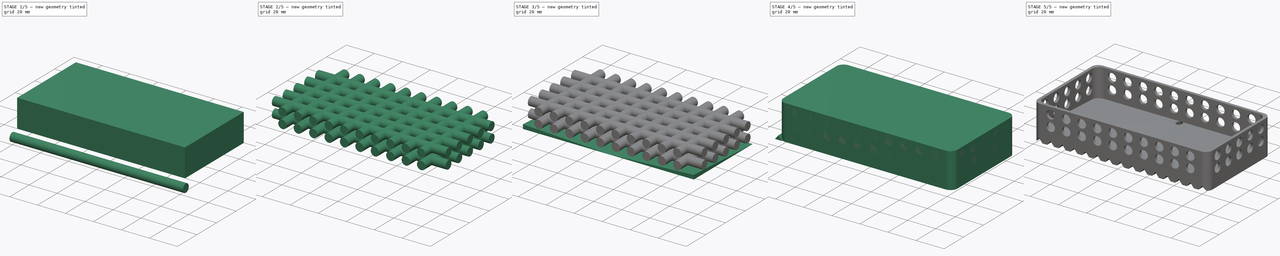
[diagram: build sequence overview — one tinted view per stage of 5, left to right]
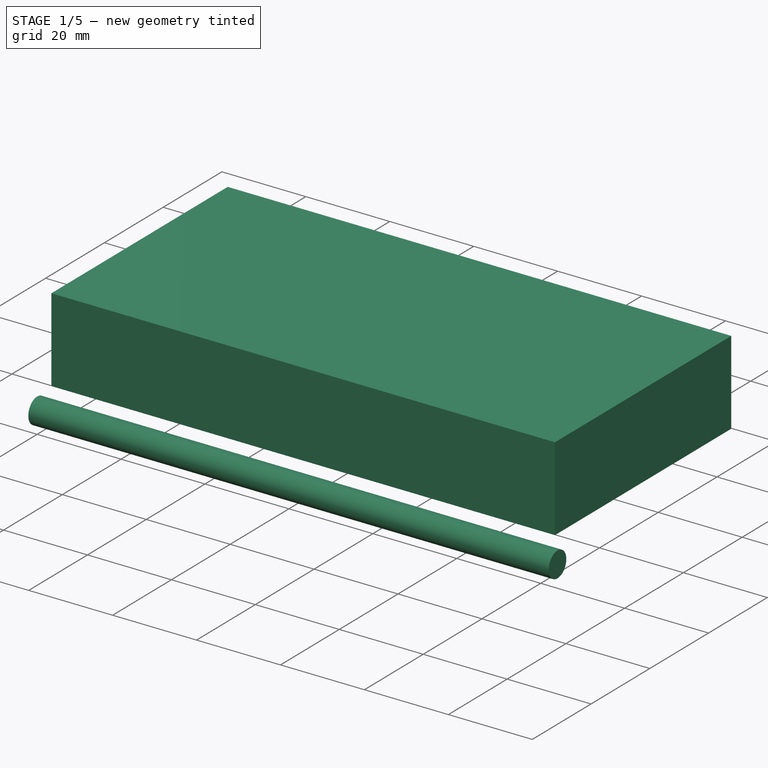
[diagram: stage 1 of 5 — iso view after this stage's code; geometry added in this stage tinted green]
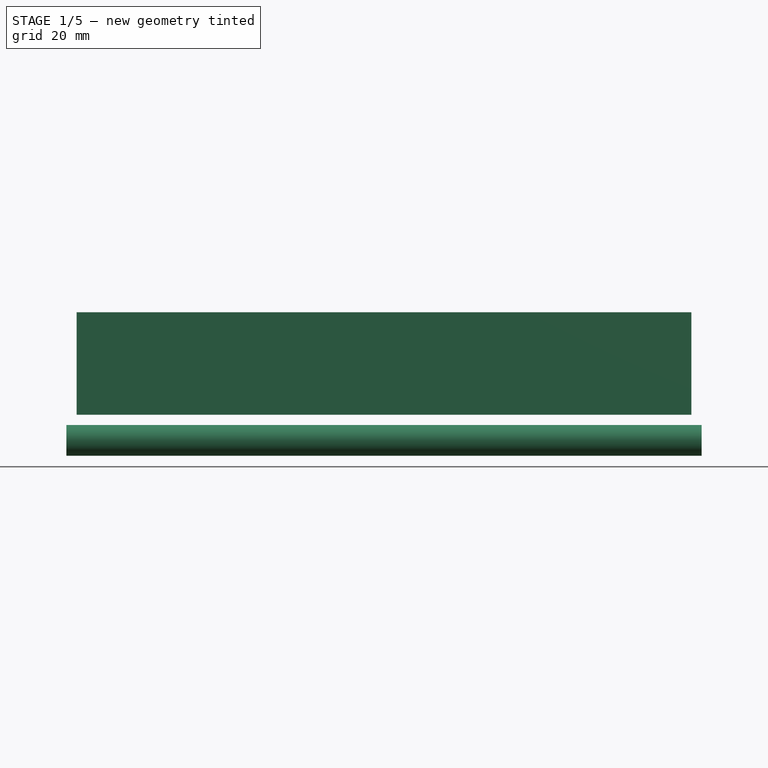
[diagram: stage 1 of 5 — front view after this stage's code; geometry added in this stage tinted green]
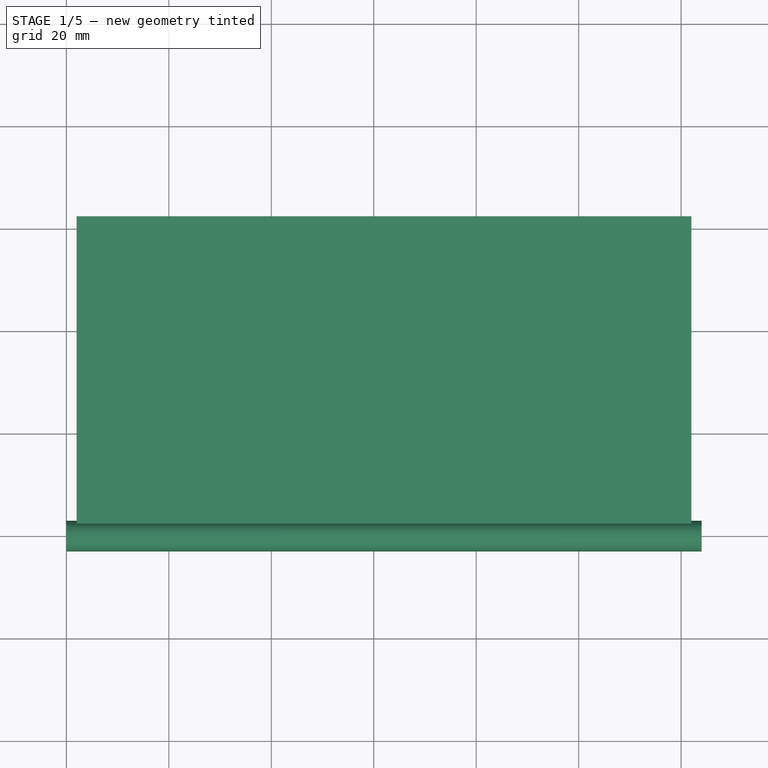
[diagram: stage 1 of 5 — top view after this stage's code; geometry added in this stage tinted green]
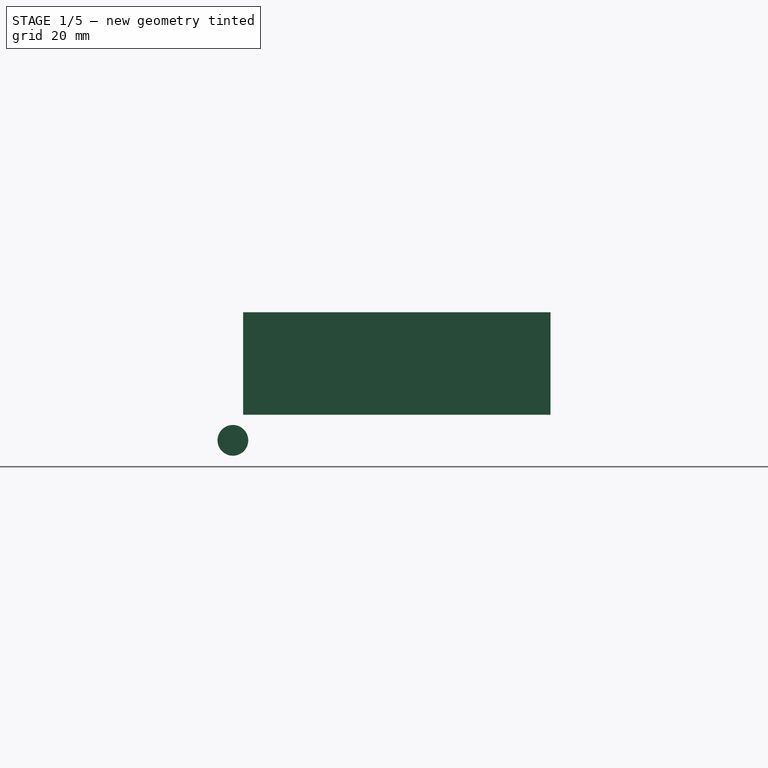
[diagram: stage 1 of 5 — right view after this stage's code; geometry added in this stage tinted green]
FCSTD DOCUMENT  (FreeCAD 0.19R)
Label: drying_rack
License: All rights reserved
LicenseURL: http://en.wikipedia.org/wiki/All_rights_reserved
objects: Sketcher::SketchObject×3, PartDesign::Pad×3, PartDesign::Body×3, Part::FeaturePython×3, Part::Cylinder×3, Part::Box×2, Part::Fillet×2, Part::Cut×2, Spreadsheet::Sheet×1, Part::MultiCommon×1, Part::MultiFuse×1
note: 23 computed .brp shape members not serialized (recipe doc carries the construction recipe); baked Part::Feature solids carry a one-line shape summary decoded from their .brp

FEATURE [PartDesign::Body] Body  label="triangle body"
  Group = -> [Sketch,Pad]
  Origin = -> Origin
  Tip = -> Pad
FEATURE [Part::Box] Box  label="bottom box external"
  AttacherType = Attacher::AttachEngine3D
  Height = 25
  Length = 124
  Width = 64
  expr: Length = <<p>>.box_internal_length + 2 * <<p>>.box_wall
  expr: Width = <<p>>.box_internal_width + 2 * <<p>>.box_wall
  expr: Height = <<p>>.box_height
FEATURE [Part::Box] Box001  label="bottom box internal"
  AttacherType = Attacher::AttachEngine3D
  Height = 20
  Length = 120
  Placement = pos=(2,2,5) rot=(0,0,1;0rad)
  Width = 60
  expr: Height = <<p>>.box_wall_height
  expr: Width = <<p>>.box_internal_width
  expr: Length = <<p>>.box_internal_length
  expr: .Placement.Base.x = <<p>>.box_wall
  expr: .Placement.Base.y = <<p>>.box_wall
  expr: .Placement.Base.z = <<p>>.bottom_triangle_height + <<p>>.box_bottom_wall
FEATURE [Part::Cylinder] Cylinder002  label="length horizontal hole"
  Angle = 360
  AttacherType = Attacher::AttachEngine3D
  Height = 124
  Placement = pos=(0,0,0) rot=(0,1,0;1.5708rad)
  Radius = 3
  expr: Radius = <<p>>.hor_hole_r
  expr: Height = <<bottom box external>>.Length
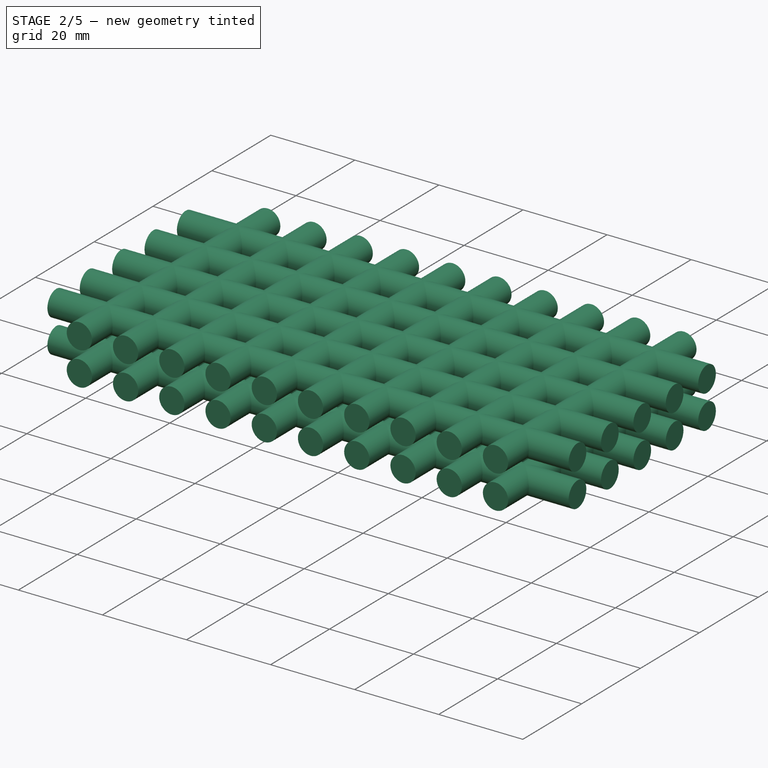
[diagram: stage 2 of 5 — iso view after this stage's code; geometry added in this stage tinted green]
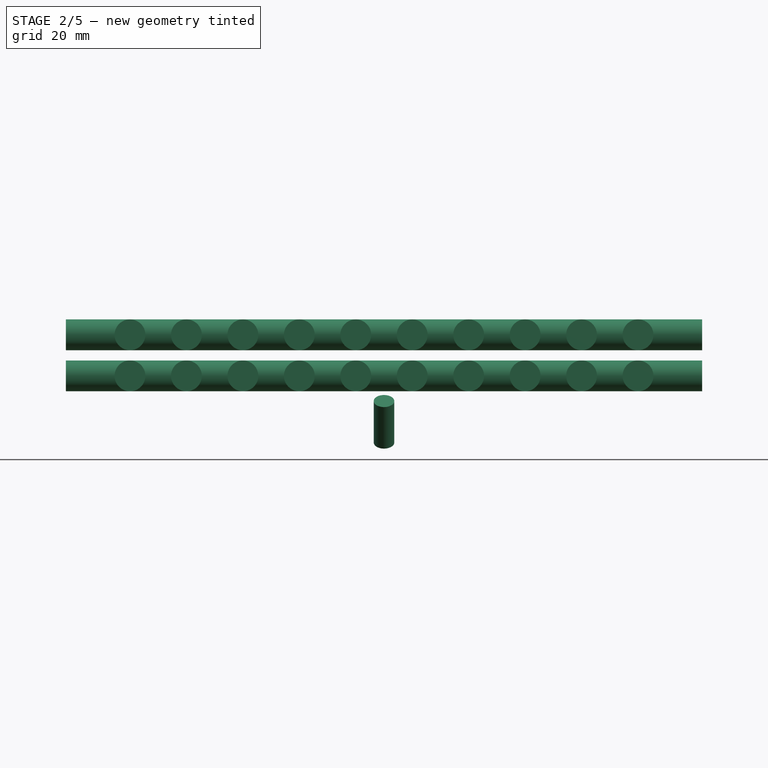
[diagram: stage 2 of 5 — front view after this stage's code; geometry added in this stage tinted green]
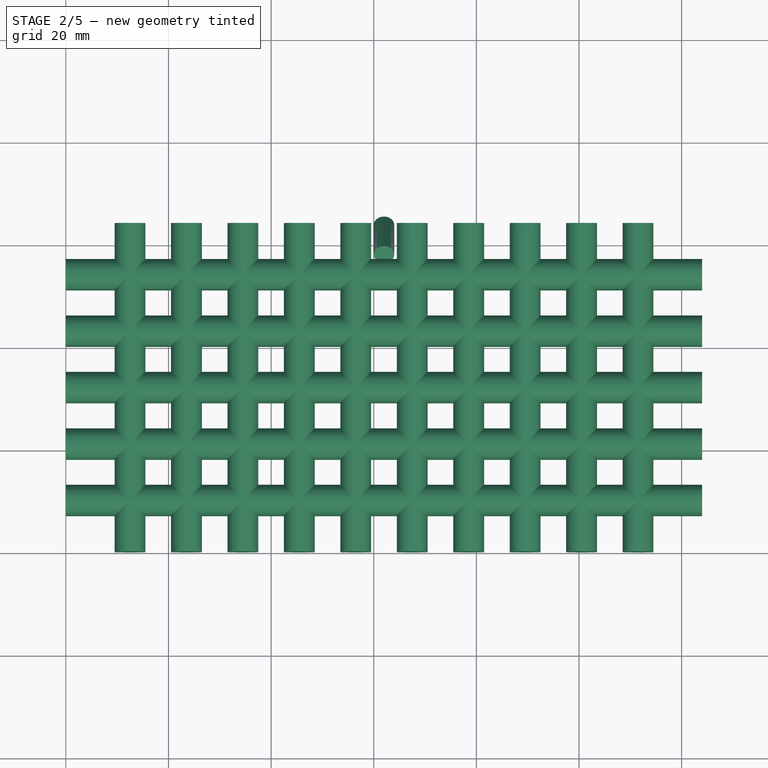
[diagram: stage 2 of 5 — top view after this stage's code; geometry added in this stage tinted green]
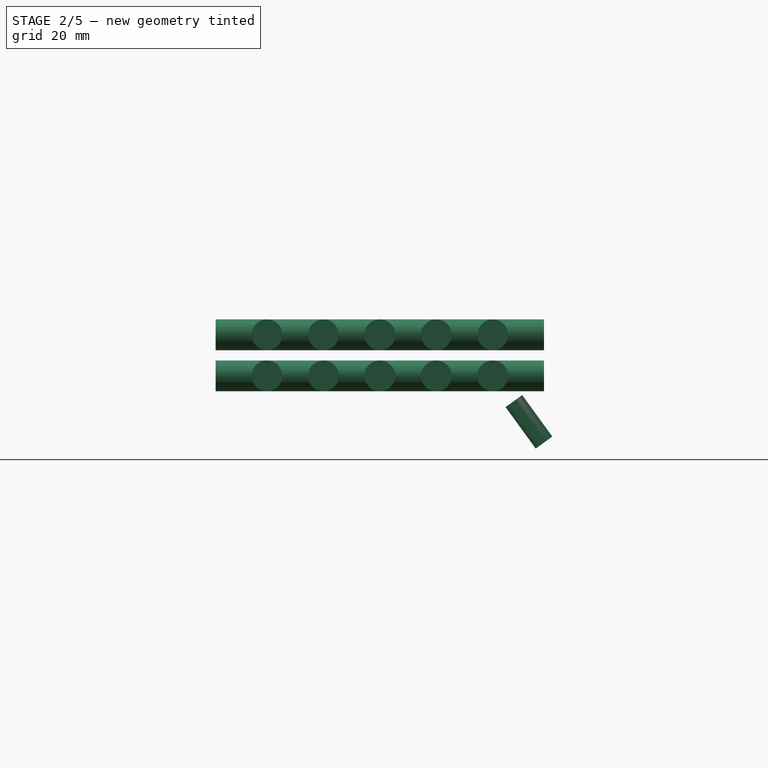
[diagram: stage 2 of 5 — right view after this stage's code; geometry added in this stage tinted green]
FEATURE [Part::Cylinder] Cylinder  label="sink cylinder"
  Angle = 360
  AttacherType = Attacher::AttachEngine3D
  Height = 10
  Placement = pos=(62,64,-1) rot=(-1,0,0;-0.628319rad)
  Radius = 2
  expr: .Placement.Base.y = <<bottom box external>>.Width
  expr: .Placement.Base.x = <<bottom box external>>.Length / 2
FEATURE [Part::Cylinder] Cylinder001  label="width horizontal hole"
  Angle = 360
  AttacherType = Attacher::AttachEngine3D
  Height = 64
  Placement = pos=(0,0,0) rot=(-1,0,0;1.5708rad)
  Radius = 3
  expr: Height = <<bottom box external>>.Width
  expr: Radius = <<p>>.hor_hole_r
FEATURE [Part::FeaturePython] Array001  label="width horizontal hole array"  # Draft array (typed FeaturePython)
  Angle = 360
  ArrayType = 0
  Axis = (0,0,1)
  Base = -> Cylinder001
  Center = (0,0,0)
  Count = 20
  ExpandArray = false
  Fuse = false
  IntervalAxis = (0,0,0)
  IntervalX = (11,0,0)
  IntervalY = (0,100,0)
  IntervalZ = (0,0,8)
  NumberCircles = 3
  NumberPolar = 5
  NumberX = 10
  NumberY = 1
  NumberZ = 2
  Placement = pos=(12.5,0,12) rot=(0,0,1;0rad)
  PlacementList = 20 placements: [(0,0,0),(0,0,8),(11,0,0),(11,0,8),(22,0,0),(22,0,8),(33,0,0),(33,0,8),(44,0,0),(44,0,8),(55,0,0),(55,0,8),(66,0,0),(66,0,8),(77,0,0),(77,0,8),(88,0,0),(88,0,8),(99,0,0),(99,0,8)]
  RadialDistance = 50
  ScaleList = (20) [(1,1,1),(1,1,1),(1,1,1),(1,1,1),(1,1,1),(1,1,1),(1,1,1),(1,1,1),(1,1,1),(1,1,1),(1,1,1),(1,1,1),(1,1,1),(1,1,1),(1,1,1),(1,1,1),(1,1,1),(1,1,1),(1,1,1),(1,1,1)]
  Symmetry = 1
  TangentialDistance = 25
  expr: NumberX = <<p>>.width_h_hole_count
  expr: .IntervalX.x = <<bottom box internal>>.Length / <<p>>.width_h_hole_count - 1mm
  expr: .Placement.Base.z = <<bottom box external>>.Height - .IntervalZ.z - <<p>>.hor_hole_r - <<p>>.box_wall
  expr: .Placement.Base.x = (<<bottom box external>>.Length - .IntervalX.x * <<p>>.width_h_hole_count) / 2 + <<p>>.hor_hole_r + (.IntervalX.x - <<p>>.hor_hole_r * 2) / 2
  expr: .IntervalZ.z = <<p>>.hor_hole_r * 2 + <<p>>.box_wall
FEATURE [Part::FeaturePython] Array002  label="length horizontal hole array"  # Draft array (typed FeaturePython)
  Angle = 360
  ArrayType = 0
  Axis = (0,0,1)
  Base = -> Cylinder002
  Center = (0,0,0)
  Count = 10
  ExpandArray = false
  Fuse = false
  IntervalAxis = (0,0,0)
  IntervalX = (100,0,0)
  IntervalY = (0,11,0)
  IntervalZ = (0,0,8)
  NumberCircles = 3
  NumberPolar = 5
  NumberX = 1
  NumberY = 5
  NumberZ = 2
  Placement = pos=(0,10,12) rot=(0,0,1;0rad)
  PlacementList = 10 placements: [(0,0,0),(0,0,8),(0,11,0),(0,11,8),(0,22,0),(0,22,8),(0,33,0),(0,33,8),(0,44,0),(0,44,8)]
  RadialDistance = 50
  ScaleList = (10) [(1,1,1),(1,1,1),(1,1,1),(1,1,1),(1,1,1),(1,1,1),(1,1,1),(1,1,1),(1,1,1),(1,1,1)]
  Symmetry = 1
  TangentialDistance = 25
  expr: .Placement.Base.z = <<bottom box external>>.Height - .IntervalZ.z - <<p>>.hor_hole_r - <<p>>.box_wall
  expr: NumberY = <<p>>.length_h_hole_count
  expr: .IntervalZ.z = <<p>>.hor_hole_r * 2 + <<p>>.box_wall
  expr: .Placement.Base.y = (<<bottom box external>>.Width - .IntervalY.y * <<p>>.length_h_hole_count) / 2 + <<p>>.hor_hole_r + (.IntervalY.y - <<p>>.hor_hole_r * 2) / 2
  expr: .IntervalY.y = <<bottom box internal>>.Width / <<p>>.length_h_hole_count - 1mm
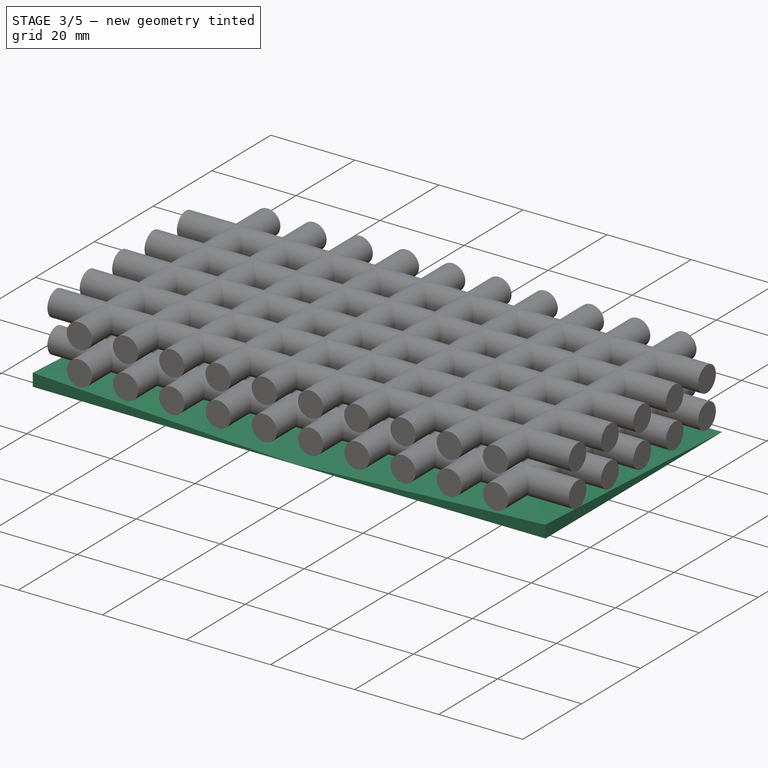
[diagram: stage 3 of 5 — iso view after this stage's code; geometry added in this stage tinted green]
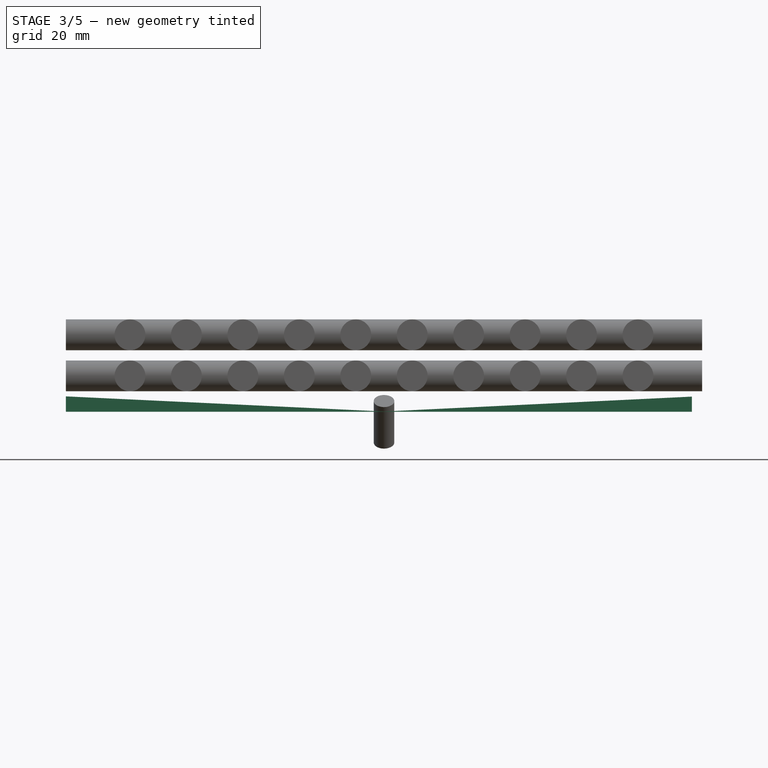
[diagram: stage 3 of 5 — front view after this stage's code; geometry added in this stage tinted green]
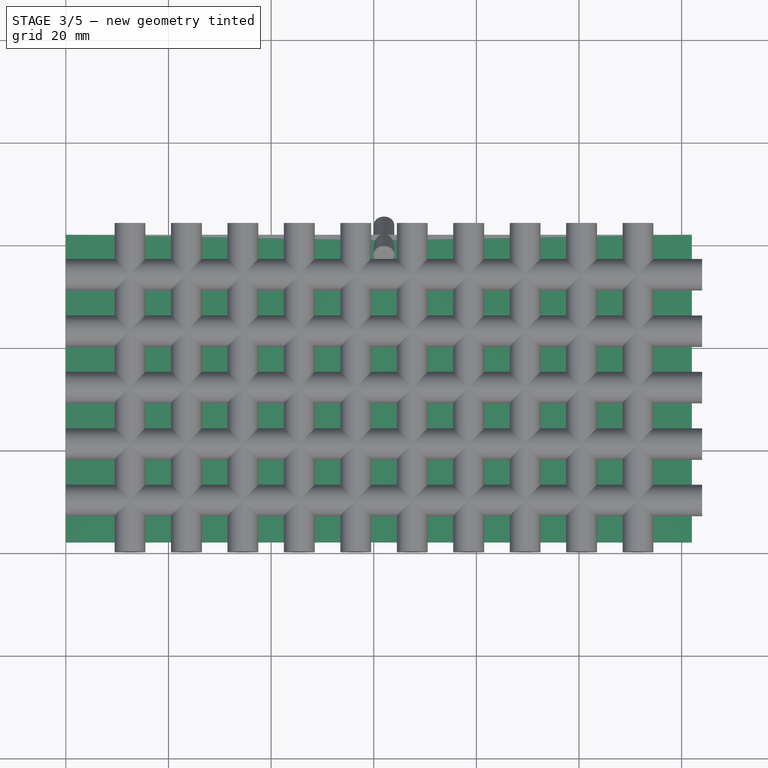
[diagram: stage 3 of 5 — top view after this stage's code; geometry added in this stage tinted green]
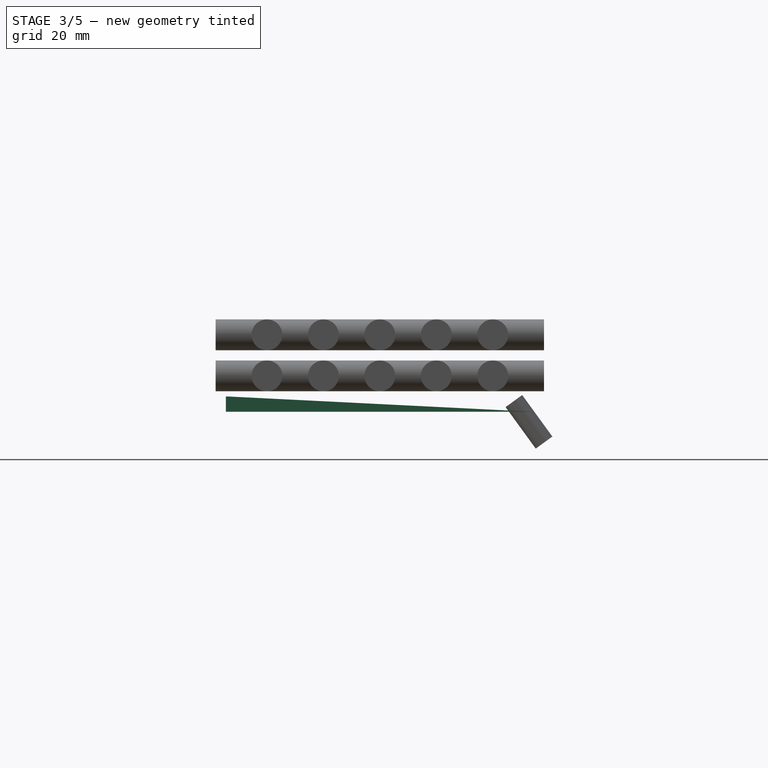
[diagram: stage 3 of 5 — right view after this stage's code; geometry added in this stage tinted green]
FEATURE [Sketcher::SketchObject] Sketch001
  FullyConstrained = false
  MapMode = 5
  Placement = pos=(0,0,0) rot=(0.57735,0.57735,0.57735;2.0944rad)
  Support = -> [YZ_Plane001]
  sketch-geometry (3):
    g0: LineSegment StartX=2 StartY=5 StartZ=0 EndX=2 EndY=8 EndZ=0
    g1: LineSegment StartX=2 StartY=8 StartZ=0 EndX=62 EndY=5 EndZ=0
    g2: LineSegment StartX=62 StartY=5 StartZ=0 EndX=2 EndY=5 EndZ=0
  constraints (4):
    c: Coincident(g0,g1)
    c: Coincident(g1,g2)
    c: Coincident(g2,g0)
    c: DistanceY(g0,g0) = 3
FEATURE [PartDesign::Pad] Pad001
  Direction = (1,1,1)
  Length = 124
  Length2 = 100
  Placement = pos=(0,0,0) rot=(0.57735,0.57735,0.57735;2.0944rad)
  Profile = -> Sketch001
  Type = 0
  expr: Length = <<bottom box external>>.Length
FEATURE [PartDesign::Body] Body001  label="bottom box internal length removal"
  Group = -> [Sketch001,Pad001]
  Origin = -> Origin001
  Tip = -> Pad001
FEATURE [Sketcher::SketchObject] Sketch002
  FullyConstrained = false
  MapMode = 5
  Placement = pos=(0,0,0) rot=(1,0,0;1.5708rad)
  Support = -> [XZ_Plane002]
  expr: Constraints[10] = <<bottom box external>>.Length / 2
  sketch-geometry (6):
    g0: LineSegment StartX=122 StartY=4.95378 StartZ=0 EndX=122 EndY=7.95378 EndZ=0
    g1: LineSegment StartX=122 StartY=7.95378 StartZ=0 EndX=62 EndY=5.05377 EndZ=0
    g2: LineSegment StartX=62 StartY=5.05377 StartZ=0 EndX=0 EndY=8 EndZ=0
    g3: LineSegment StartX=0 StartY=8 StartZ=0 EndX=0 EndY=4.95378 EndZ=0
    g4: LineSegment StartX=0 StartY=4.95378 StartZ=0 EndX=122 EndY=4.95378 EndZ=0
    g5: LineSegment StartX=122 StartY=4.95378 StartZ=0 EndX=122 EndY=7.95378 EndZ=0
  constraints (14):
    c: Vertical(g0)
    c: Coincident(g0,g1)
    c: Coincident(g1,g2)
    c: Coincident(g2,g3)
    c: Vertical(g3)
    c: Coincident(g3,g4)
    c: Horizontal(g4)
    c: Coincident(g4,g5)
    c: DistanceY(g0,g0) = 3
    c: DistanceY(g3,g1) = 0.1
    c: DistanceX(g3,g1) = 62
    c: Coincident(g0,g5)
    c: Coincident(g0,g4)
    c: PointOnObject(g3,g-2)
FEATURE [PartDesign::Pad] Pad002
  Direction = (1,1,1)
  Length = 64
  Length2 = 100
  Placement = pos=(0,0,0) rot=(1,0,0;1.5708rad)
  Profile = -> Sketch002
  Reversed = true
  Type = 0
  expr: Length = <<bottom box external>>.Width
FEATURE [PartDesign::Body] Body002  label="bottom box internal width removal"
  Group = -> [Sketch002,Pad002]
  Origin = -> Origin002
  Tip = -> Pad002
FEATURE [Part::MultiCommon] Common  label="bottom box internal removal"
  Shapes = -> [Body002,Body001]
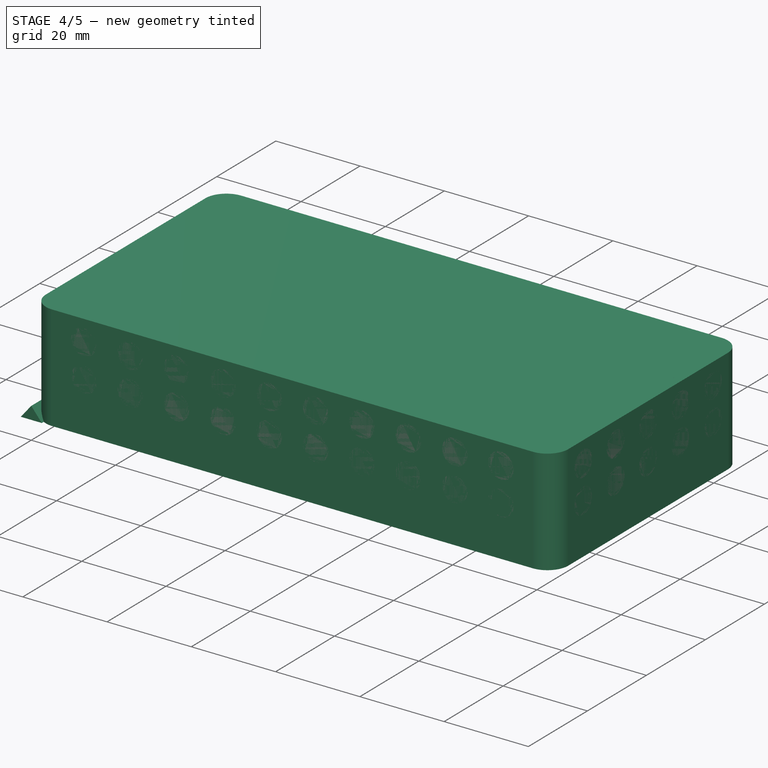
[diagram: stage 4 of 5 — iso view after this stage's code; geometry added in this stage tinted green]
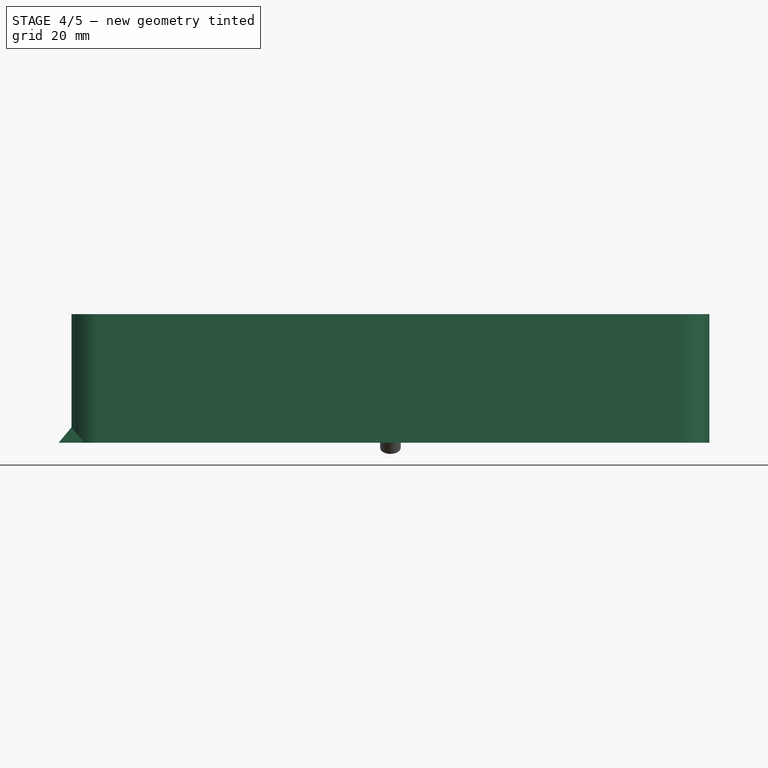
[diagram: stage 4 of 5 — front view after this stage's code; geometry added in this stage tinted green]
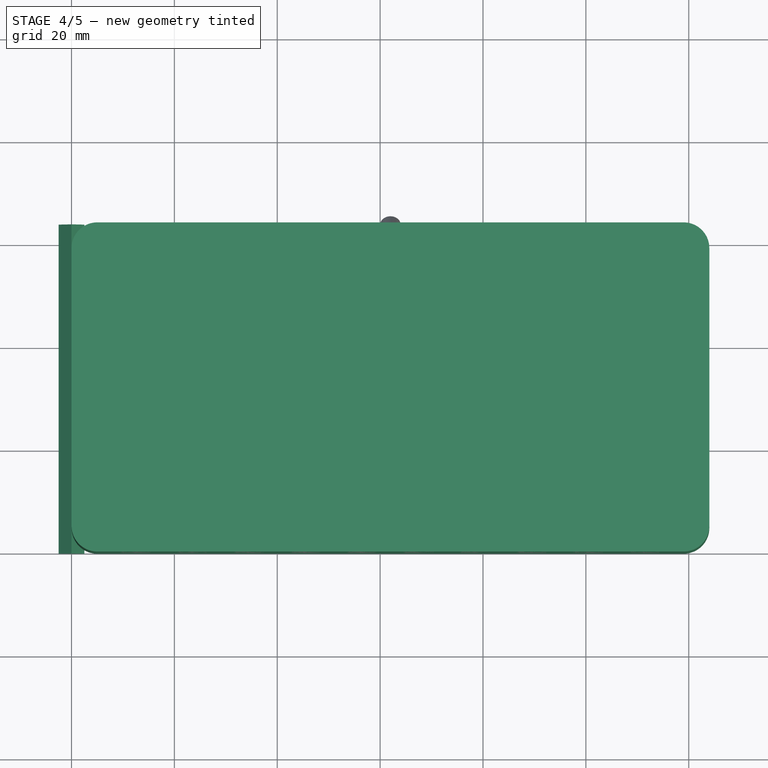
[diagram: stage 4 of 5 — top view after this stage's code; geometry added in this stage tinted green]
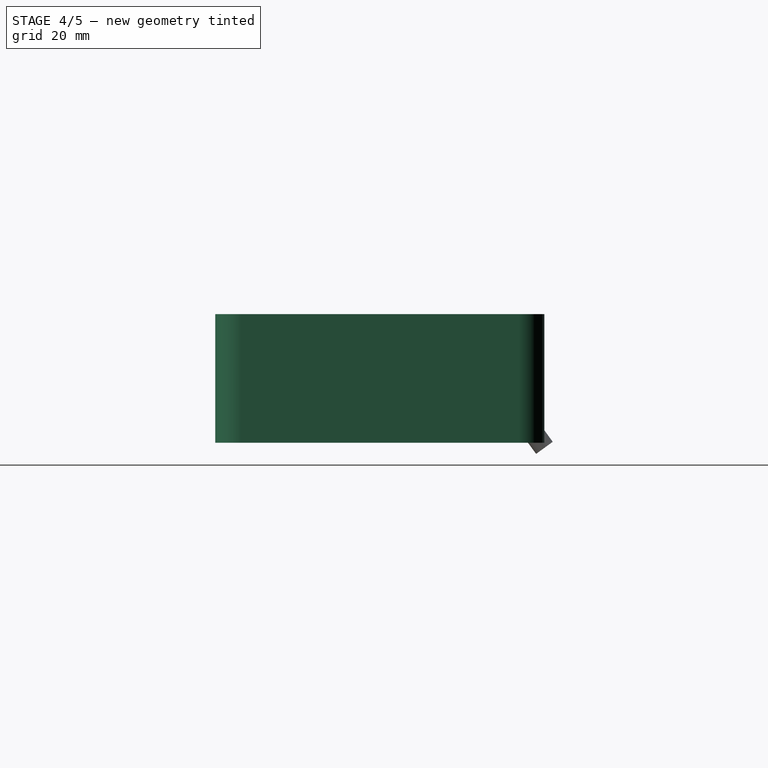
[diagram: stage 4 of 5 — right view after this stage's code; geometry added in this stage tinted green]
FEATURE [Sketcher::SketchObject] Sketch
  FullyConstrained = true
  MapMode = 5
  Placement = pos=(0,0,0) rot=(1,0,0;1.5708rad)
  Support = -> [XZ_Plane]
  expr: Constraints[6] = <<p>>.bottom_triangle_height
  expr: Constraints[7] = <<p>>.triangle_length
  sketch-geometry (3):
    g0: LineSegment StartX=-2.5 StartY=0 StartZ=0 EndX=0 EndY=3 EndZ=0
    g1: LineSegment StartX=0 StartY=3 StartZ=0 EndX=2.5 EndY=0 EndZ=0
    g2: LineSegment StartX=2.5 StartY=0 StartZ=0 EndX=-2.5 EndY=0 EndZ=0
  constraints (8):
    c: PointOnObject(g0,g-1)
    c: Coincident(g0,g1)
    c: Coincident(g1,g2)
    c: Coincident(g2,g0)
    c: Symmetric(g0,g1,g-2)
    c: PointOnObject(g0,g-2)
    c: DistanceY(g-1,g0) = 3
    c: DistanceX(g2,g2) = 5
FEATURE [Spreadsheet::Sheet] Spreadsheet  label="p"
  cells = A1=triangle_length; B1(triangle_length)==5mm; A2=bottom_triangle_height; B2(bottom_triangle_height)==3mm; A3=box_internal_width; B3(box_internal_width)==60mm; A4=box_internal_length; B4(box_internal_length)==120mm; A5=box_bottom_wall; B5(box_bottom_wall)==2mm; A6=box_wall_height; B6(box_wall_height)==20mm; A7=box_height; B7(box_height)==bottom_triangle_height + box_bottom_wall + box_wall_height; A8=box_wall; B8(box_wall)==2mm; A9=triangle_step; B9(triangle_step)==(box_internal_length + 2 * box_wall) / triangle_count; A10=triangle_count; B10(triangle_count)=15; A11=width_h_hole_count; B11(width_h_hole_count)=10; A12=length_h_hole_count; B12(length_h_hole_count)=5; A13=hor_hole_r; B13(hor_hole_r)==3mm
FEATURE [PartDesign::Pad] Pad
  Direction = (1,1,1)
  Length = 64
  Length2 = 100
  Placement = pos=(0,0,0) rot=(1,0,0;1.5708rad)
  Profile = -> Sketch
  Reversed = true
  Type = 0
  expr: Length = <<p>>.box_internal_width + 2 * <<p>>.box_wall
FEATURE [Part::Fillet] Fillet  label="bottom box external fillet"
  Base = -> Box
  Edges = 4 edges r=5: [Edge1,Edge3,Edge5,Edge7]
FEATURE [Part::Fillet] Fillet001  label="bottom box internal fillet"
  Base = -> Box001
  Edges = 4 edges r=5: [Edge1,Edge3,Edge5,Edge7]
FEATURE [Part::Cut] Cut001  label="box internal processed"
  Base = -> Fillet001
  Tool = -> Common
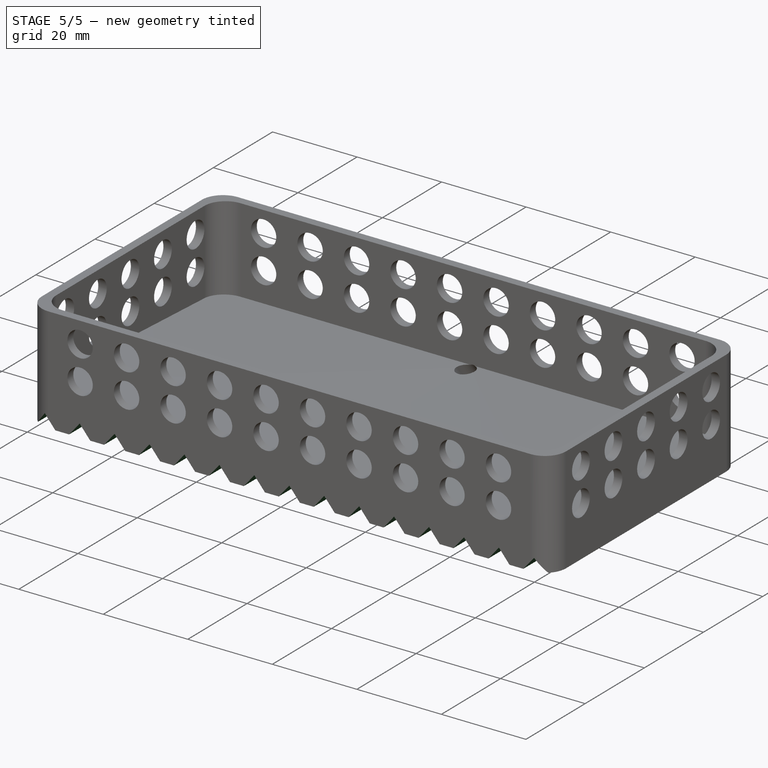
[diagram: stage 5 of 5 — iso view after this stage's code; geometry added in this stage tinted green]
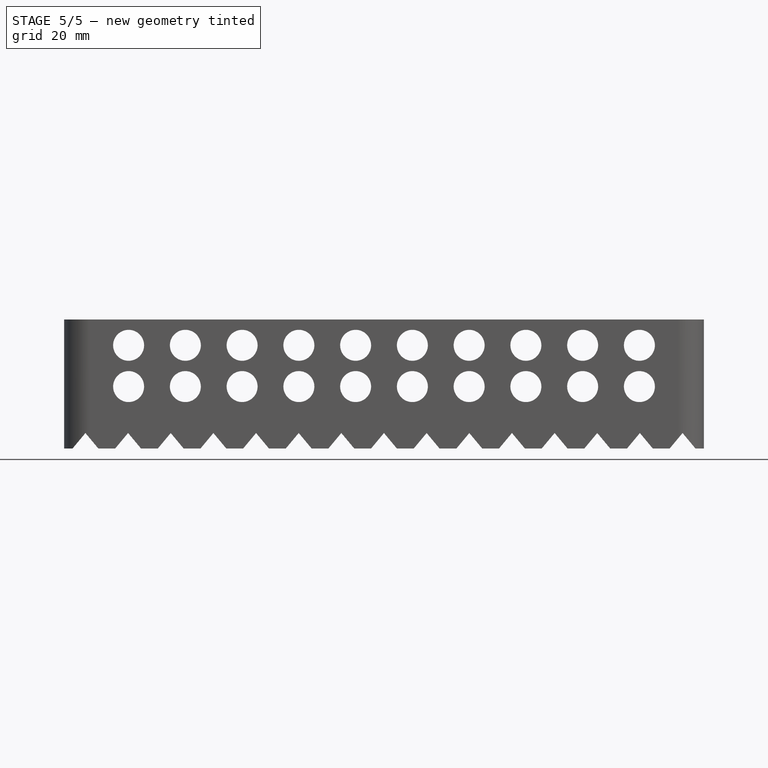
[diagram: stage 5 of 5 — front view after this stage's code; geometry added in this stage tinted green]
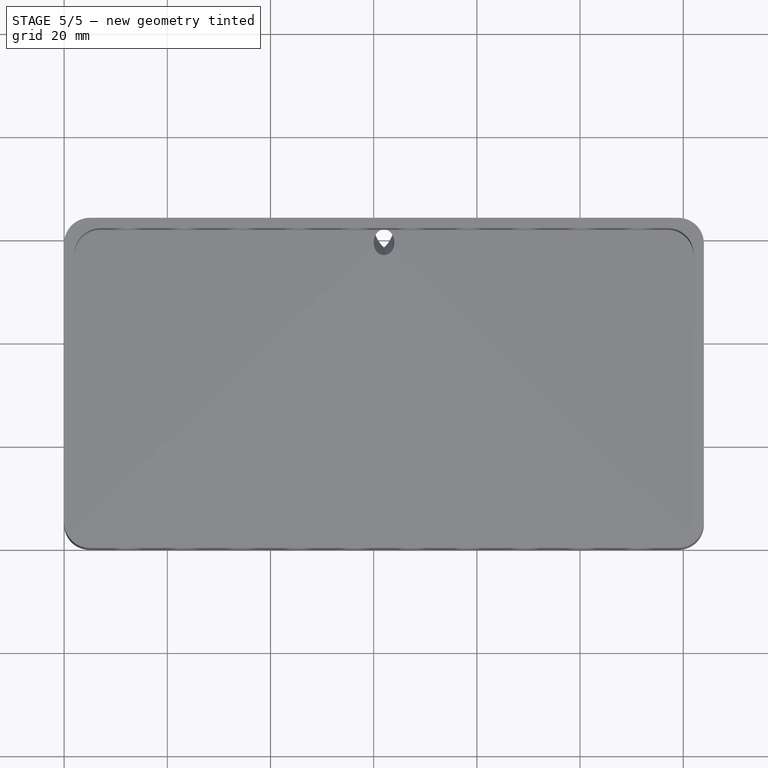
[diagram: stage 5 of 5 — top view after this stage's code; geometry added in this stage tinted green]
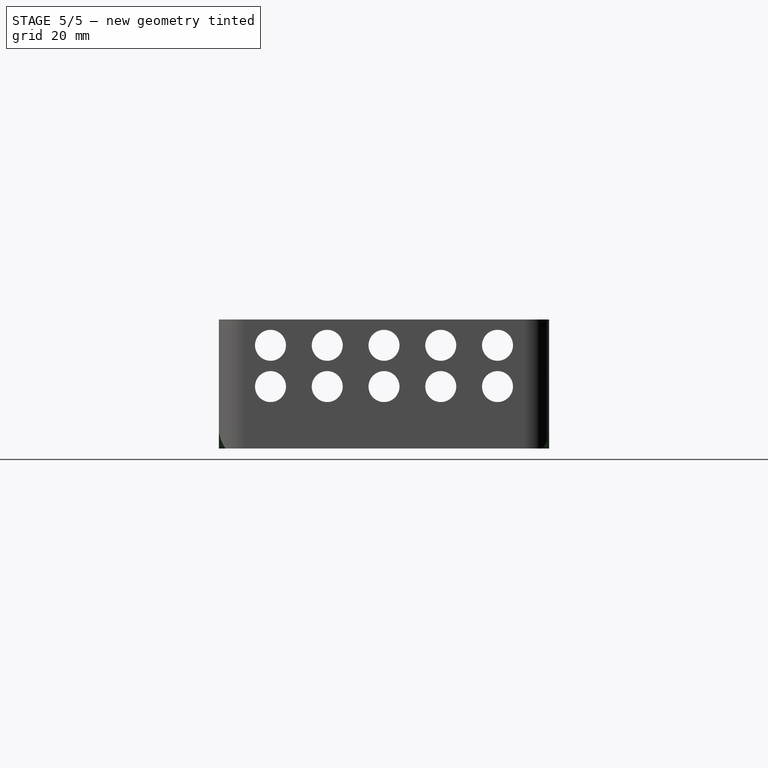
[diagram: stage 5 of 5 — right view after this stage's code; geometry added in this stage tinted green]
FEATURE [Part::FeaturePython] Array  label="triangle array"  # Draft array (typed FeaturePython)
  Angle = 360
  ArrayType = 0
  Axis = (0,0,1)
  Base = -> Body
  Center = (0,0,0)
  Count = 15
  ExpandArray = false
  Fuse = false
  IntervalAxis = (0,0,0)
  IntervalX = (8.26667,0,0)
  IntervalY = (0,100,0)
  IntervalZ = (0,0,100)
  NumberCircles = 3
  NumberPolar = 5
  NumberX = 15
  NumberY = 1
  NumberZ = 1
  Placement = pos=(4.13333,0,0) rot=(0,0,1;0rad)
  PlacementList = 15 placements: arithmetic series from (0,0,0) step (8.26667,0,0) to (115.733,0,0)
  RadialDistance = 50
  ScaleList = (15) [(1,1,1),(1,1,1),(1,1,1),(1,1,1),(1,1,1),(1,1,1),(1,1,1),(1,1,1),(1,1,1),(1,1,1),(1,1,1),(1,1,1),(1,1,1),(1,1,1),(1,1,1)]
  Symmetry = 1
  TangentialDistance = 25
  expr: .IntervalX.x = <<p>>.triangle_step
  expr: NumberX = <<p>>.triangle_count
  expr: .Placement.Base.x = <<p>>.triangle_step / 2
FEATURE [Part::MultiFuse] Fusion  label="extract fusion"
  Shapes = -> [Array,Cut001,Cylinder,Array001,Array002]
FEATURE [Part::Cut] Cut  label="rack cut"
  Base = -> Fillet
  Tool = -> Fusion
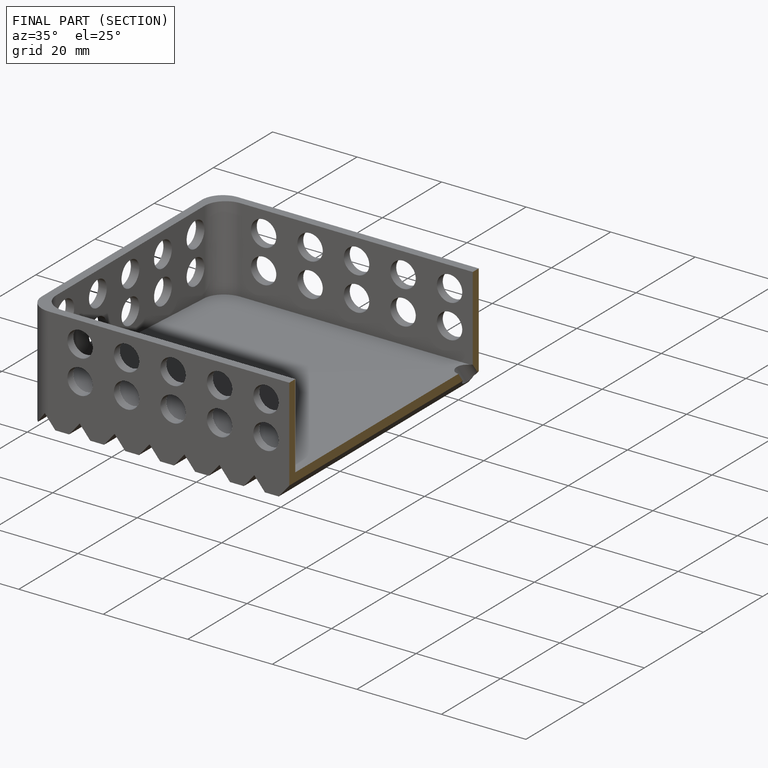
[diagram: finished part — half-section view (interior)]
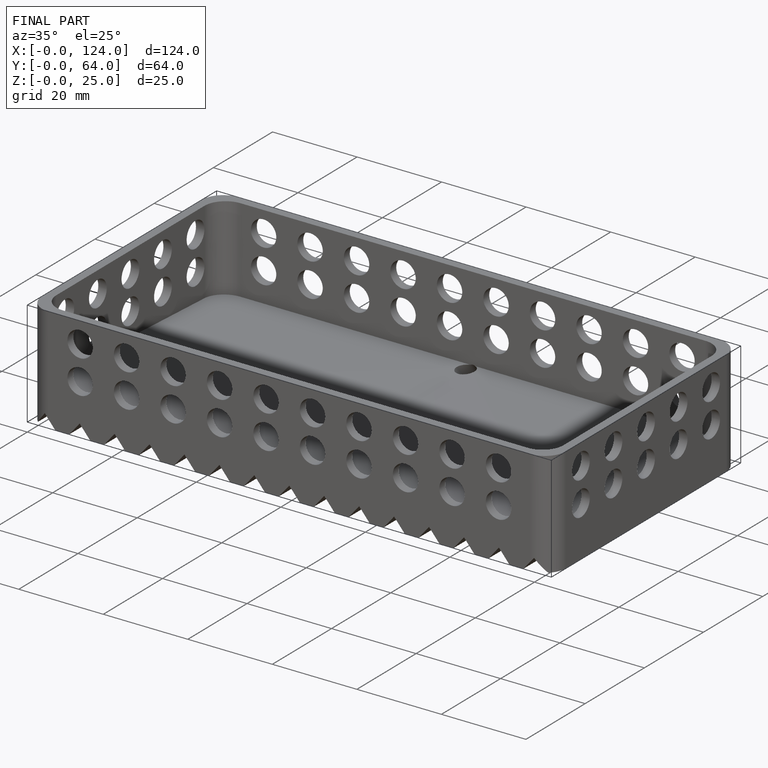
[diagram: finished part — iso view with bounding-box wireframe]
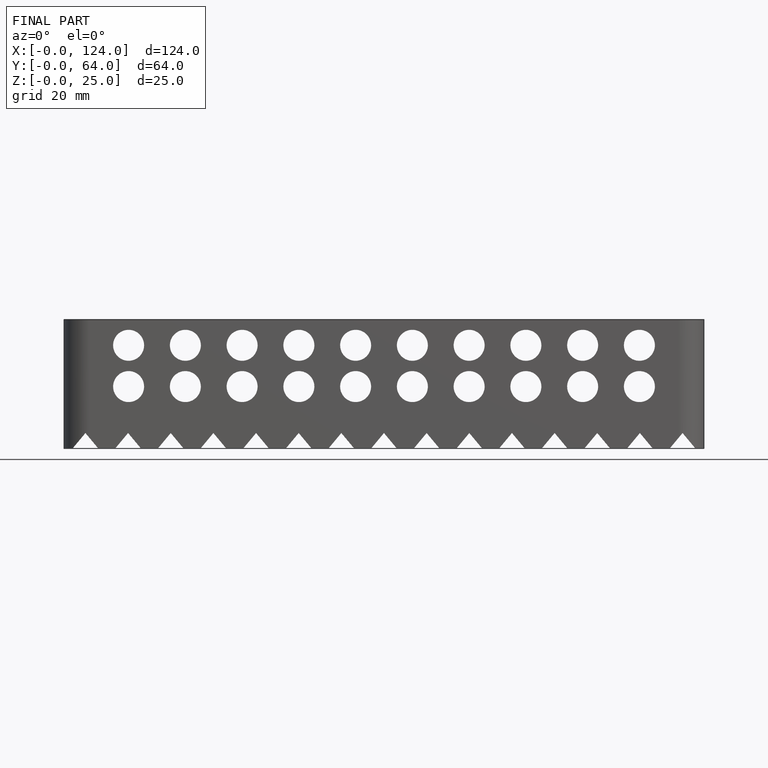
[diagram: finished part — front view with bounding-box wireframe]
